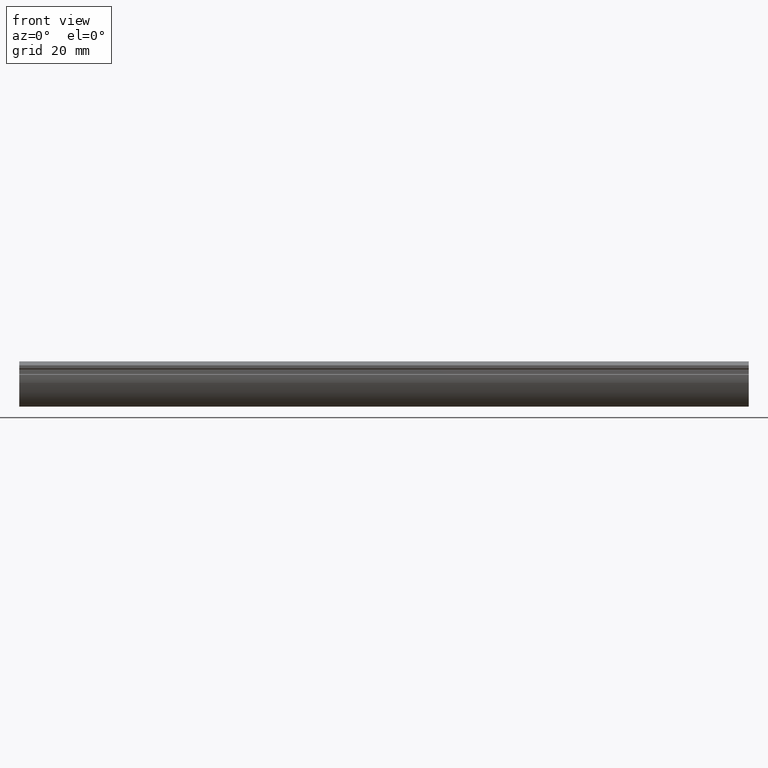
[diagram: clean part render]
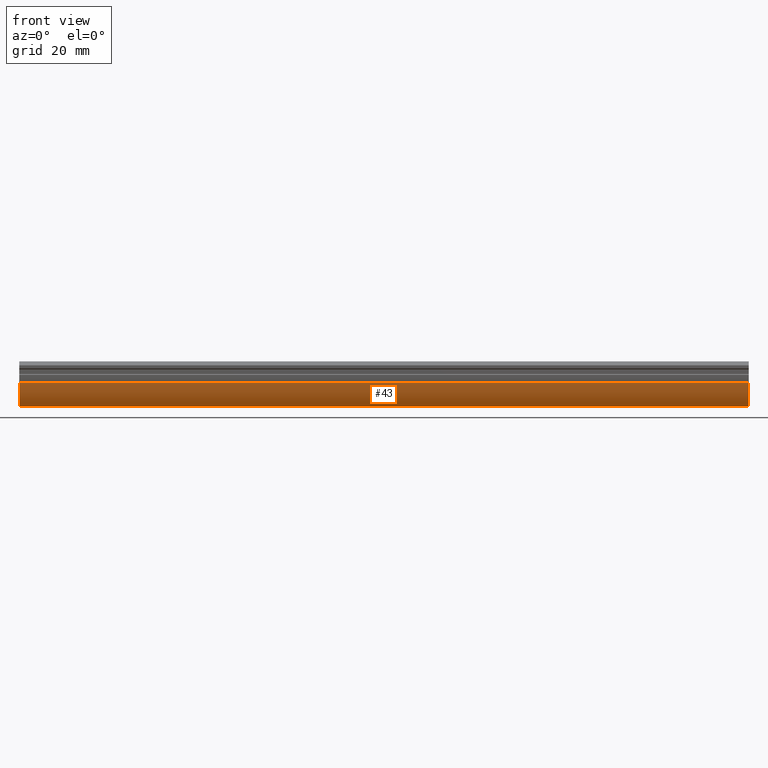
[diagram: same view with one face highlighted and labeled with its STEP entity id]
A machine part, front view. The second image highlights one B-rep face of the part: STEP entity #43.
In plain terms, the highlighted cylindrical surface (partial cylindrical patch) has radius 13.3967 mm, axis along (-1, 0, 0).
Its self-contained STEP definition (entity closure, byte-faithful):
#2=CARTESIAN_POINT('',(200.000000010000010,9.019225754930282,9.767145787373272));
#3=DIRECTION('',(-1.0,0.0,0.0));
#4=DIRECTION('',(0.0,-1.0,6.123234E-017));
#5=AXIS2_PLACEMENT_3D('',#2,#3,#4);
#6=CYLINDRICAL_SURFACE('',#5,13.396656669607449);
#7=CARTESIAN_POINT('',(0.0,-0.143060386871170,-0.006437106278618));
#8=VERTEX_POINT('',#7);
#9=CARTESIAN_POINT('',(0.0,-3.967215729280877,6.477351340832984));
#10=VERTEX_POINT('',#9);
#11=CARTESIAN_POINT('',(0.0,9.019225754930282,9.767145787373272));
#12=DIRECTION('',(-1.0,0.0,0.0));
#13=DIRECTION('',(0.0,-1.0,6.123234E-017));
#14=AXIS2_PLACEMENT_3D('',#11,#12,#13);
#15=CIRCLE('',#14,13.396656669607449);
#16=EDGE_CURVE('',#8,#10,#15,.T.);
#17=ORIENTED_EDGE('',*,*,#16,.F.);
#18=CARTESIAN_POINT('',(200.0,-0.143060386871170,-0.006437106278618));
#19=VERTEX_POINT('',#18);
#20=CARTESIAN_POINT('',(200.0,-0.143060386871170,-0.006437106278618));
#21=DIRECTION('',(-1.0,0.0,0.0));
#22=VECTOR('',#21,200.0);
#23=LINE('',#20,#22);
#24=EDGE_CURVE('',#19,#8,#23,.T.);
#25=ORIENTED_EDGE('',*,*,#24,.F.);
#26=CARTESIAN_POINT('',(200.0,-3.967215729280877,6.477351340832984));
#27=VERTEX_POINT('',#26);
#28=CARTESIAN_POINT('',(200.0,9.019225754930282,9.767145787373272));
#29=DIRECTION('',(-1.0,0.0,0.0));
#30=DIRECTION('',(0.0,-1.0,6.123234E-017));
#31=AXIS2_PLACEMENT_3D('',#28,#29,#30);
#32=CIRCLE('',#31,13.396656669607449);
#33=EDGE_CURVE('',#19,#27,#32,.T.);
#34=ORIENTED_EDGE('',*,*,#33,.T.);
#35=CARTESIAN_POINT('',(200.0,-3.967215729280877,6.477351340832984));
#36=DIRECTION('',(-1.0,0.0,0.0));
#37=VECTOR('',#36,200.0);
#38=LINE('',#35,#37);
#39=EDGE_CURVE('',#27,#10,#38,.T.);
#40=ORIENTED_EDGE('',*,*,#39,.T.);
#41=EDGE_LOOP('',(#17,#25,#34,#40));
#42=FACE_OUTER_BOUND('',#41,.T.);
#43=ADVANCED_FACE('',(#42),#6,.T.);